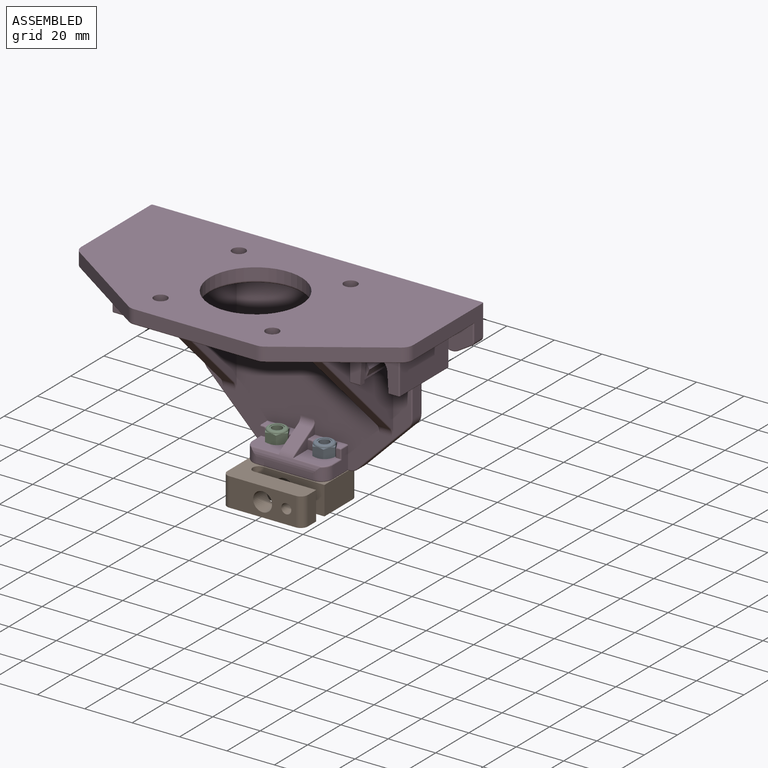
[diagram: assembled view]
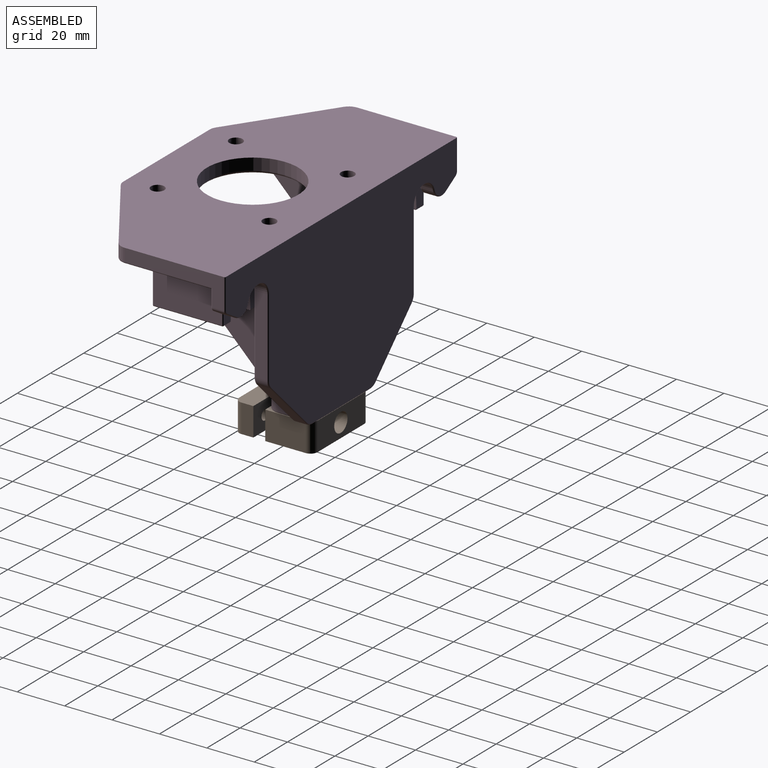
[diagram: assembled view, second angle]
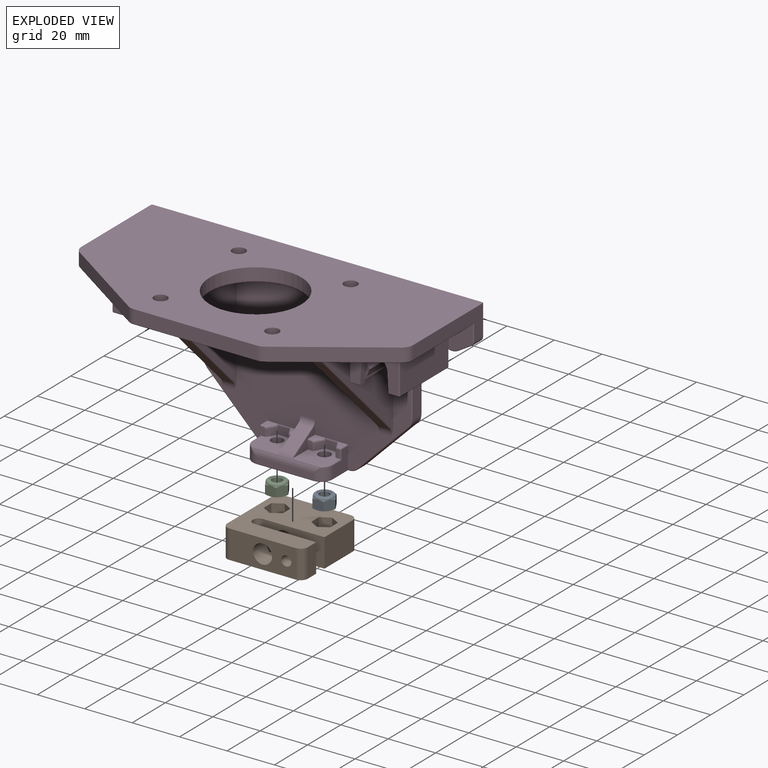
[diagram: exploded view]
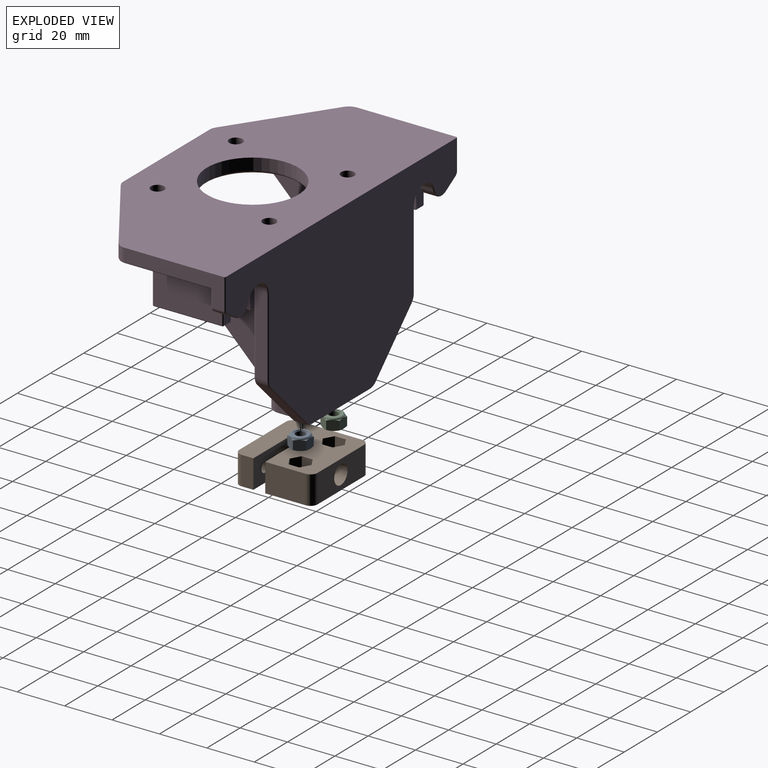
[diagram: exploded view, second angle]
ASSEMBLY  parts=4 mates=8
PART A: 26 faces, bbox 9.6x9.6x5.4 mm
  f0: cylinder r=2.12mm len=4.25mm, axis (0,0,-1), area 8mm2, adj f18,f19
  f1: cylinder r=2.65mm len=5.3mm, axis (0,0,-1), area 3.8mm2, adj f17,f18
  f2: torus R=3.17mm, axis (0,0,-1), area 30.3mm2, adj f4,f11,f12,f13,f14,f15,f17
  f3: cylinder r=2.5mm len=5mm, axis (0,0,-1), area 65.5mm2, adj f16,f19
  f4: cone r=4.75mm half-angle=65deg, axis (0,0,-1), area 1.5mm2, adj f2,f22,f23
  f5: cone r=4mm half-angle=65deg, axis (0,0,1), area 1.5mm2, adj f16,f20,f25
  f6: cone r=4mm half-angle=65deg, axis (0,0,1), area 1.5mm2, adj f16,f22,f23
  f7: cone r=4mm half-angle=65deg, axis (0,0,1), area 1.5mm2, adj f16,f21,f22
  f8: cone r=4mm half-angle=65deg, axis (0,0,1), area 1.5mm2, adj f16,f20,f21
  f9: cone r=4mm half-angle=65deg, axis (0,0,1), area 1.5mm2, adj f16,f23,f24
  f10: cone r=4mm half-angle=65deg, axis (0,0,1), area 1.5mm2, adj f16,f24,f25
  f11: cone r=4.75mm half-angle=65deg, axis (0,0,-1), area 1.5mm2, adj f2,f20,f25
  f12: cone r=4.75mm half-angle=65deg, axis (0,0,-1), area 1.5mm2, adj f2,f20,f21
  f13: cone r=4.75mm half-angle=65deg, axis (0,0,-1), area 1.5mm2, adj f2,f21,f22
  f14: cone r=4.75mm half-angle=65deg, axis (0,0,-1), area 1.5mm2, adj f2,f23,f24
  f15: cone r=4.75mm half-angle=65deg, axis (0,0,-1), area 1.5mm2, adj f2,f24,f25
  f16: plane 8x8mm, normal (0,0,-1), area 30.6mm2, adj f3,f5,f6,f7,f8,f9,f10
  f17: plane 6.34x6.34mm, normal (0,0,1), area 9.5mm2, adj f1,f2
  f18: plane 5.3x5.3mm, normal (0,0,1), area 7.9mm2, adj f0,f1
  f19: plane 5x5mm, normal (0,0,-1), area 5.4mm2, adj f0,f3
  f20: plane 4.53x4.36mm, normal (0.5,-0.87,0), area 18.3mm2, adj f5,f8,f11,f12,f21,f25
  f21: plane 4.98x4.53mm, normal (1,0,0), area 18.3mm2, adj f7,f8,f12,f13,f20,f22
  f22: plane 4.53x4.36mm, normal (0.5,0.87,0), area 18.3mm2, adj f4,f6,f7,f13,f21,f23
  f23: plane 4.53x4.36mm, normal (-0.5,0.87,0), area 18.3mm2, adj f4,f6,f9,f14,f22,f24
  f24: plane 4.98x4.53mm, normal (-1,0,0), area 18.3mm2, adj f9,f10,f14,f15,f23,f25
  f25: plane 4.53x4.36mm, normal (-0.5,-0.87,0), area 18.3mm2, adj f5,f10,f11,f15,f20,f24
PART B: 37 faces, bbox 34x33x12 mm
  f0: cylinder r=2.1mm len=8mm, axis (0,-1,0), area 105.6mm2, adj f13,f31
  f1: cylinder r=2.5mm len=12mm, axis (0,0,1), area 94.2mm2, adj f10,f12,f31,f32
  f2: cylinder r=4.5mm len=9mm, axis (0,0,-1), area 56.5mm2, adj f10,f30
  f3: cylinder r=4.5mm len=9mm, axis (0,0,-1), area 56.5mm2, adj f10,f29
  f4: cylinder r=4mm len=20mm, axis (0,-1,0), area 502.7mm2, adj f14,f32
  f5: cylinder r=2.55mm len=5.1mm, axis (0,0,1), area 80.1mm2, adj f22,f29
  f6: cylinder r=2.55mm len=5.1mm, axis (0,0,1), area 80.1mm2, adj f15,f30
  f7: cylinder r=4mm len=8mm, axis (0,-1,0), area 201.1mm2, adj f13,f31
  f8: plane 12x5mm, normal (1,0,0), area 60mm2, adj f10,f12,f31,f35
  f9: plane 27x12mm, normal (-1,0,0), area 324mm2, adj f10,f12,f33,f36
  f10: plane 34x33mm, normal (0,0,-1), area 847.2mm2, adj f1,f2,f3,f8,f9,f11,f13,f14
  f11: plane 17x12mm, normal (1,0,0), area 204mm2, adj f10,f12,f32,f34
  f12: plane 34x33mm, normal (0,0,1), area 863.6mm2, adj f1,f8,f9,f11,f13,f14,f16,f17
  f13: plane 28x12mm, normal (0,-1,0), area 271.9mm2, adj f0,f7,f10,f12,f35,f36
  f14: plane 28x12mm, normal (0,1,0), area 285.7mm2, adj f4,f10,f12,f33,f34
  f15: plane 9.24x8mm, normal (0,0,1), area 35mm2, adj f6,f16,f17,f18,f19,f20,f21
  f16: plane 5x4mm, normal (-0.5,-0.87,0), area 23.1mm2, adj f12,f15,f17,f21
  f17: plane 5x4.62mm, normal (-1,0,0), area 23.1mm2, adj f12,f15,f16,f18
  f18: plane 5x4mm, normal (-0.5,0.87,0), area 23.1mm2, adj f12,f15,f17,f19
  f19: plane 5x4mm, normal (0.5,0.87,0), area 23.1mm2, adj f12,f15,f18,f20
  f20: plane 5x4.62mm, normal (1,0,0), area 23.1mm2, adj f12,f15,f19,f21
  f21: plane 5x4mm, normal (0.5,-0.87,0), area 23.1mm2, adj f12,f15,f16,f20
  f22: plane 9.24x8mm, normal (0,0,1), area 35mm2, adj f5,f23,f24,f25,f26,f27,f28
  f23: plane 5x4.62mm, normal (1,0,0), area 23.1mm2, adj f12,f22,f24,f28
  f24: plane 5x4mm, normal (0.5,-0.87,0), area 23.1mm2, adj f12,f22,f23,f25
  f25: plane 5x4mm, normal (-0.5,-0.87,0), area 23.1mm2, adj f12,f22,f24,f26
  f26: plane 5x4.62mm, normal (-1,0,0), area 23.1mm2, adj f12,f22,f25,f27
  f27: plane 5x4mm, normal (-0.5,0.87,0), area 23.1mm2, adj f12,f22,f26,f28
  f28: plane 5x4mm, normal (0.5,0.87,0), area 23.1mm2, adj f12,f22,f23,f27
  f29: plane 9x9mm, normal (0,0,-1), area 43.2mm2, adj f3,f5
  f30: plane 9x9mm, normal (0,0,-1), area 43.2mm2, adj f2,f6
  f31: plane 26x12mm, normal (0,1,0), area 247.9mm2, adj f0,f1,f7,f8,f10,f12
  f32: plane 26x12mm, normal (0,-1,0), area 261.7mm2, adj f1,f4,f10,f11,f12
  f33: cylinder r=3mm len=12mm, axis (0,0,-1), area 56.5mm2, adj f9,f10,f12,f14
  f34: cylinder r=3mm len=12mm, axis (0,0,1), area 56.5mm2, adj f10,f11,f12,f14
  f35: cylinder r=3mm len=12mm, axis (0,0,-1), area 56.5mm2, adj f8,f10,f12,f13
  f36: cylinder r=3mm len=12mm, axis (0,0,1), area 56.5mm2, adj f9,f10,f12,f13
PART C: same geometry as A
PART D: 282 faces, bbox 141x74.3x76.5 mm
  f0: plane 3.77x3.06mm, normal (0,0,1), area 7.4mm2, adj f2,f151,f157,f219
  f1: plane 3.77x3.56mm, normal (0,0,1), area 9.3mm2, adj f2,f124,f148,f163
  f2: plane 139.12x69.62mm, normal (0,-1,0), area 4896.8mm2, adj f0,f1,f3,f6,f103,f104,f106,f107
  f3: plane 13.24x10.05mm, normal (-1,0,0), area 39.6mm2, adj f2,f5,f131,f139,f144,f145,f160,f234
  f4: plane 13.5x12.62mm, normal (0,0,1), area 121.7mm2, adj f127,f132,f133,f134,f135,f136,f137,f152
  f5: plane 13.5x12.62mm, normal (0,0,1), area 121.7mm2, adj f3,f128,f139,f140,f141,f142,f143,f158
  f6: plane 139.13x67.4mm, normal (0,0,-1), area 4629.6mm2, adj f2,f21,f22,f23,f24,f85,f91,f96
  f7: cylinder r=7.6mm len=24.8mm, axis (0,1,0), area 386.7mm2, adj f39,f43,f71,f72,f73,f76,f78,f79
  f8: cylinder r=7.6mm len=17.5mm, axis (0,1,0), area 77.4mm2, adj f11,f40,f45,f80
  f9: cylinder r=7.6mm len=24.8mm, axis (0,1,0), area 386.7mm2, adj f50,f54,f59,f60,f61,f64,f66,f67
  f10: cylinder r=7.6mm len=17.5mm, axis (0,1,0), area 77.4mm2, adj f12,f51,f56,f68
  f11: plane 7.18x1.25mm, normal (0,1,0), area 3.6mm2, adj f8,f39,f40
  f12: plane 7.18x1.25mm, normal (0,1,0), area 3.6mm2, adj f10,f50,f51
  f13: plane 7.18x1.25mm, normal (0,-1,0), area 3.6mm2, adj f41,f42,f43
  f14: plane 7.18x1.25mm, normal (0,-1,0), area 3.6mm2, adj f52,f53,f54
  f15: plane 39.03x26.42mm, normal (-0.56,-0.83,0), area 259.2mm2, adj f26,f112,f115,f203
  f16: plane 51.93x5.5mm, normal (0,-1,0), area 285.6mm2, adj f26,f112,f113,f207
  f17: plane 39.03x26.42mm, normal (0.56,-0.83,0), area 259.2mm2, adj f26,f113,f114,f211
  f18: plane 41.85x12.87mm, normal (1,0,0), area 267mm2, adj f26,f114,f122,f164,f215,f216
  f19: plane 139x75.5mm, normal (0,1,0), area 6711.4mm2, adj f26,f164,f165,f166,f167,f168,f169,f170
  f20: cylinder r=19.3mm len=38.6mm, axis (0,0,-1), area 606.3mm2, adj f26,f241
  f21: cylinder r=2.8mm len=6mm, axis (0,0,-1), area 105.6mm2, adj f6,f26
  f22: cylinder r=2.8mm len=6mm, axis (0,0,-1), area 105.6mm2, adj f6,f26
  f23: cylinder r=2.8mm len=6mm, axis (0,0,-1), area 105.6mm2, adj f6,f26
  f24: cylinder r=2.8mm len=6mm, axis (0,0,-1), area 105.6mm2, adj f6,f26
  f25: plane 41.85x12.87mm, normal (-1,0,0), area 267mm2, adj f26,f115,f123,f182,f197,f199
  f26: plane 140x73.77mm, normal (0,0,1), area 7833.6mm2, adj f15,f16,f17,f18,f19,f20,f21,f22
  f27: plane 5.78x5mm, normal (0.52,0,-0.85), area 33.8mm2, adj f116,f122,f166,f212
  f28: cylinder r=6mm len=11.82mm, axis (0,1,0), area 86.9mm2, adj f29,f116,f168,f208
  f29: plane 32.93x5mm, normal (1,0,0), area 164.6mm2, adj f28,f117,f169,f206
  f30: plane 21.57x21.57mm, normal (0.71,0,-0.71), area 152.5mm2, adj f117,f118,f171,f202
  f31: plane 34.86x19mm, normal (0,0,-1), area 586.7mm2, adj f118,f119,f127,f128,f173,f186,f188,f190
  f32: plane 21.57x21.57mm, normal (-0.71,0,-0.71), area 152.5mm2, adj f119,f120,f175,f183
  f33: plane 32.93x5mm, normal (-1,0,0), area 164.6mm2, adj f34,f120,f177,f187
  f34: cylinder r=6mm len=11.82mm, axis (0,1,0), area 86.9mm2, adj f33,f121,f178,f189
  f35: plane 5.78x5mm, normal (-0.52,0,-0.85), area 33.8mm2, adj f121,f123,f180,f193
  f36: plane 28.8x16mm, normal (1,0,0), area 460.8mm2, adj f244,f256,f259,f262
  f37: plane 28.8x16mm, normal (-1,0,0), area 460.8mm2, adj f245,f248,f251,f253
  f38: plane 28.8x4.1mm, normal (0,0,-1), area 78.4mm2, adj f39,f83,f86,f92,f95,f247,f250,f251
  f39: plane 24.8x8mm, normal (1,0,0), area 72.8mm2, adj f7,f11,f38,f40,f45,f80,f86,f92
  f40: plane 17.5x3mm, normal (0.92,0,-0.38), area 56.9mm2, adj f8,f11,f39,f45
  f41: cylinder r=7.6mm len=17.5mm, axis (0,1,0), area 77.4mm2, adj f13,f42,f46,f70
  f42: plane 17.5x3mm, normal (-0.92,0,-0.38), area 56.9mm2, adj f13,f41,f43,f46
  f43: plane 24.8x8mm, normal (-1,0,0), area 72.8mm2, adj f7,f13,f42,f44,f46,f70,f86,f92
  f44: plane 28.8x4.1mm, normal (0,0,-1), area 78.4mm2, adj f43,f82,f86,f92,f93,f257,f259,f260
  f45: plane 7.18x1.25mm, normal (0,-1,0), area 3.6mm2, adj f8,f39,f40
  f46: plane 7.18x1.25mm, normal (0,1,0), area 3.6mm2, adj f41,f42,f43
  f47: plane 28.8x16mm, normal (1,0,0), area 460.8mm2, adj f242,f274,f277,f280
  f48: plane 28.8x16mm, normal (-1,0,0), area 460.8mm2, adj f243,f266,f269,f271
  f49: plane 28.8x4.1mm, normal (0,0,-1), area 78.4mm2, adj f50,f87,f89,f97,f100,f265,f268,f269
  f50: plane 24.8x8mm, normal (1,0,0), area 72.8mm2, adj f9,f12,f49,f51,f56,f68,f87,f97
  f51: plane 17.5x3mm, normal (0.92,0,-0.38), area 56.9mm2, adj f10,f12,f50,f56
  f52: cylinder r=7.6mm len=17.5mm, axis (0,1,0), area 77.4mm2, adj f14,f53,f57,f58
  f53: plane 17.5x3mm, normal (-0.92,0,-0.38), area 56.9mm2, adj f14,f52,f54,f57
  f54: plane 24.8x8mm, normal (-1,0,0), area 72.8mm2, adj f9,f14,f53,f55,f57,f58,f87,f97
  f55: plane 28.8x4.1mm, normal (0,0,-1), area 78.4mm2, adj f54,f87,f88,f97,f98,f275,f277,f278
  f56: plane 7.18x1.25mm, normal (0,-1,0), area 3.6mm2, adj f10,f50,f51
  f57: plane 7.18x1.25mm, normal (0,1,0), area 3.6mm2, adj f52,f53,f54
  f58: plane 18.2x0.5mm, normal (0,0,1), area 9.1mm2, adj f52,f54,f59,f61,f62
  f59: plane 10.5x2.5mm, normal (0,1,0), area 19.2mm2, adj f9,f58,f60,f62,f63
  f60: plane 18.2x5.36mm, normal (1,0,0), area 97.6mm2, adj f9,f59,f61,f63
  f61: plane 10.5x2.5mm, normal (0,-1,0), area 19.2mm2, adj f9,f58,f60,f62,f63
  f62: plane 18.2x10.5mm, normal (-1,0,0), area 191.1mm2, adj f58,f59,f61,f63
  f63: plane 18.2x2.5mm, normal (0,0,-1), area 45.5mm2, adj f59,f60,f61,f62
  f64: plane 10.5x2.5mm, normal (0,1,0), area 19.2mm2, adj f9,f65,f67,f68,f69
  f65: plane 18.2x10.5mm, normal (1,0,0), area 191.1mm2, adj f64,f66,f68,f69
  f66: plane 10.5x2.5mm, normal (0,-1,0), area 19.2mm2, adj f9,f65,f67,f68,f69
  f67: plane 18.2x5.36mm, normal (-1,0,0), area 97.6mm2, adj f9,f64,f66,f69
  f68: plane 18.2x0.5mm, normal (0,0,1), area 9.1mm2, adj f10,f50,f64,f65,f66
  f69: plane 18.2x2.5mm, normal (0,0,-1), area 45.5mm2, adj f64,f65,f66,f67
  f70: plane 18.2x0.5mm, normal (0,0,1), area 9.1mm2, adj f41,f43,f71,f73,f74
  f71: plane 10.5x2.5mm, normal (0,1,0), area 19.2mm2, adj f7,f70,f72,f74,f75
  f72: plane 18.2x5.36mm, normal (1,0,0), area 97.6mm2, adj f7,f71,f73,f75
  f73: plane 10.5x2.5mm, normal (0,-1,0), area 19.2mm2, adj f7,f70,f72,f74,f75
  f74: plane 18.2x10.5mm, normal (-1,0,0), area 191.1mm2, adj f70,f71,f73,f75
  f75: plane 18.2x2.5mm, normal (0,0,-1), area 45.5mm2, adj f71,f72,f73,f74
  f76: plane 10.5x2.5mm, normal (0,1,0), area 19.2mm2, adj f7,f77,f79,f80,f81
  f77: plane 18.2x10.5mm, normal (1,0,0), area 191.1mm2, adj f76,f78,f80,f81
  f78: plane 10.5x2.5mm, normal (0,-1,0), area 19.2mm2, adj f7,f77,f79,f80,f81
  f79: plane 18.2x5.36mm, normal (-1,0,0), area 97.6mm2, adj f7,f76,f78,f81
  f80: plane 18.2x0.5mm, normal (0,0,1), area 9.1mm2, adj f8,f39,f76,f77,f78
  f81: plane 18.2x2.5mm, normal (0,0,-1), area 45.5mm2, adj f76,f77,f78,f79
  f82: plane 8.01x2.51mm, normal (-1,0,-0.06), area 20mm2, adj f44,f84,f85,f86,f260
  f83: plane 8.01x2.51mm, normal (1,0,-0.06), area 20mm2, adj f38,f84,f85,f86,f250
  f84: cylinder r=5.5mm len=11mm, axis (0,1,0), area 43.2mm2, adj f82,f83,f85,f86
  f85: plane 22.2x18mm, normal (0,-1,0), area 231.3mm2, adj f6,f82,f83,f84,f250,f253,f254,f260
  f86: plane 15.6x15.2mm, normal (0,1,0), area 72.8mm2, adj f7,f38,f39,f43,f44,f82,f83,f84
  f87: plane 15.6x15.2mm, normal (0,1,0), area 72.8mm2, adj f9,f49,f50,f54,f55,f88,f89,f90
  f88: plane 8.01x2.51mm, normal (-1,0,-0.06), area 20mm2, adj f55,f87,f90,f91,f278
  f89: plane 8.01x2.51mm, normal (1,0,-0.06), area 20mm2, adj f49,f87,f90,f91,f268
  f90: cylinder r=5.5mm len=11mm, axis (0,1,0), area 43.2mm2, adj f87,f88,f89,f91
  f91: plane 22.2x18mm, normal (0,-1,0), area 231.3mm2, adj f6,f88,f89,f90,f268,f271,f272,f278
  f92: plane 15.6x15.2mm, normal (0,-1,0), area 72.8mm2, adj f7,f38,f39,f43,f44,f93,f94,f95
  f93: plane 8.01x2.51mm, normal (-1,0,-0.06), area 20mm2, adj f44,f92,f94,f96,f257
  f94: cylinder r=5.5mm len=11mm, axis (0,-1,0), area 43.2mm2, adj f92,f93,f95,f96
  f95: plane 8.01x2.51mm, normal (1,0,-0.06), area 20mm2, adj f38,f92,f94,f96,f247
  f96: plane 22.2x18mm, normal (0,1,0), area 231.3mm2, adj f6,f93,f94,f95,f246,f247,f248,f255
  f97: plane 15.6x15.2mm, normal (0,-1,0), area 72.8mm2, adj f9,f49,f50,f54,f55,f98,f99,f100
  f98: plane 8.01x2.51mm, normal (-1,0,-0.06), area 20mm2, adj f55,f97,f99,f101,f275
  f99: cylinder r=5.5mm len=11mm, axis (0,-1,0), area 43.2mm2, adj f97,f98,f100,f101
  f100: plane 8.01x2.51mm, normal (1,0,-0.06), area 20mm2, adj f49,f97,f99,f101,f265
  f101: plane 22.2x18mm, normal (0,1,0), area 231.3mm2, adj f6,f98,f99,f100,f264,f265,f266,f273
  f102: plane 47.07x47.07mm, normal (0,-0.71,-0.71), area 332.8mm2, adj f110,f111,f223,f226
  f103: plane 49.78x49.78mm, normal (1,0,0), area 1215.2mm2, adj f2,f6,f222,f223,f224
  f104: plane 49.78x49.78mm, normal (-1,0,0), area 1215.2mm2, adj f2,f6,f225,f226,f227
  f105: plane 47.07x47.07mm, normal (0,-0.71,-0.71), area 332.8mm2, adj f108,f109,f229,f232
  f106: plane 49.78x49.78mm, normal (-1,0,0), area 1215.2mm2, adj f2,f6,f228,f229,f230
  f107: plane 49.78x49.78mm, normal (1,0,0), area 1215.2mm2, adj f2,f6,f231,f232,f233
  f108: cylinder r=5mm len=5mm, axis (-1,0,0), area 19.6mm2, adj f6,f105,f228,f231
  f109: cylinder r=5mm len=5mm, axis (-1,0,0), area 19.6mm2, adj f2,f105,f230,f233
  f110: cylinder r=5mm len=5mm, axis (-1,0,0), area 19.6mm2, adj f6,f102,f222,f225
  f111: cylinder r=5mm len=5mm, axis (-1,0,0), area 19.6mm2, adj f2,f102,f224,f227
  f112: cylinder r=5mm len=5.5mm, axis (0,0,-1), area 16.4mm2, adj f15,f16,f26,f205
  f113: cylinder r=5mm len=5.5mm, axis (0,0,-1), area 16.4mm2, adj f16,f17,f26,f209
  f114: cylinder r=5mm len=5.5mm, axis (0,0,-1), area 26.8mm2, adj f17,f18,f26,f213
  f115: cylinder r=5mm len=5.5mm, axis (0,0,-1), area 26.8mm2, adj f15,f25,f26,f201
  f116: cylinder r=5mm len=7.44mm, axis (0,1,0), area 46.8mm2, adj f27,f28,f167,f210
  f117: cylinder r=5mm len=5mm, axis (0,1,0), area 19.6mm2, adj f29,f30,f170,f204
  f118: cylinder r=5mm len=5mm, axis (0,-1,0), area 19.6mm2, adj f30,f31,f172,f200
  f119: cylinder r=5mm len=5mm, axis (0,1,0), area 19.6mm2, adj f31,f32,f174,f184
  f120: cylinder r=5mm len=5mm, axis (0,1,0), area 19.6mm2, adj f32,f33,f176,f185
  f121: cylinder r=5mm len=7.44mm, axis (0,1,0), area 46.8mm2, adj f34,f35,f179,f191
  f122: cylinder r=2mm len=5mm, axis (0,1,0), area 10.3mm2, adj f18,f27,f165,f214
  f123: cylinder r=2mm len=5mm, axis (0,-1,0), area 10.3mm2, adj f25,f35,f181,f195
  f124: plane 9.5x9mm, normal (-1,0,0), area 64.2mm2, adj f1,f2,f130,f140,f163,f188,f240
  f125: plane 9x9mm, normal (1,0,0), area 60.1mm2, adj f2,f129,f196,f217,f219,f237
  f126: plane 24x2.61mm, normal (0,-1,0), area 62.7mm2, adj f129,f130,f192,f234
  f127: cylinder r=2.55mm len=6mm, axis (0,0,-1), area 96.1mm2, adj f4,f31
  f128: cylinder r=2.55mm len=6mm, axis (0,0,-1), area 96.1mm2, adj f5,f31
  f129: cylinder r=5mm len=5mm, axis (0,0,-1), area 36.3mm2, adj f125,f126,f194,f234,f236
  f130: cylinder r=5mm len=5mm, axis (0,0,1), area 36.3mm2, adj f124,f126,f190,f234,f239
  f131: plane 10x5.77mm, normal (0,-0.5,0.87), area 63.5mm2, adj f3,f145,f220,f234
  f132: plane 13.24x8.25mm, normal (1,0,0), area 32mm2, adj f2,f4,f133,f138,f154,f220,f221,f234
  f133: plane 3.5x1.96mm, normal (0,-1,0), area 6.8mm2, adj f4,f132,f152,f153,f154
  f134: plane 3.82x3mm, normal (0.87,-0.5,0), area 13.2mm2, adj f4,f135,f149,f152
  f135: plane 5.02x3.42mm, normal (0,-1,0), area 16.3mm2, adj f4,f134,f136,f149,f150,f151
  f136: plane 3.82x3mm, normal (-0.87,-0.5,0), area 13.2mm2, adj f4,f135,f151,f155
  f137: plane 3.5x1.46mm, normal (0,-1,0), area 5.1mm2, adj f4,f155,f156,f157,f217
  f138: plane 3.77x3.56mm, normal (0,0,1), area 9.3mm2, adj f2,f132,f149,f154
  f139: plane 3.5x1.96mm, normal (0,-1,0), area 6.8mm2, adj f3,f5,f158,f159,f160
  f140: plane 4x1.96mm, normal (0,-1,0), area 6.9mm2, adj f5,f124,f161,f162,f163,f240
  f141: plane 3.82x3mm, normal (0.87,-0.5,0), area 13.2mm2, adj f5,f142,f148,f161
  f142: plane 5.02x3.42mm, normal (0,-1,0), area 16.3mm2, adj f5,f141,f143,f146,f147,f148
  f143: plane 3.82x3mm, normal (-0.87,-0.5,0), area 13.2mm2, adj f5,f142,f146,f158
  f144: plane 3.77x3.56mm, normal (0,0,1), area 9.3mm2, adj f2,f3,f146,f160
  f145: cylinder r=3mm len=5.5mm, axis (-1,0,0), area 17.3mm2, adj f2,f3,f131,f221
  f146: cylinder r=1mm len=4.57mm, axis (-0.5,0.87,0), area 6.9mm2, adj f142,f143,f144,f147,f159
  f147: cylinder r=1mm len=6.88mm, axis (-1,0,0), area 3.6mm2, adj f2,f142,f146,f148
  f148: cylinder r=1mm len=4.57mm, axis (-0.5,-0.87,0), area 6.9mm2, adj f1,f141,f142,f147,f162
  f149: cylinder r=1mm len=4.57mm, axis (-0.5,-0.87,0), area 6.9mm2, adj f134,f135,f138,f150,f153
  f150: cylinder r=1mm len=6.88mm, axis (-1,0,0), area 3.6mm2, adj f2,f135,f149,f151
  f151: cylinder r=1mm len=4.57mm, axis (-0.5,0.87,0), area 6.9mm2, adj f0,f135,f136,f150,f156
  f152: cylinder r=0.5mm len=3mm, axis (0,0,-1), area 1.6mm2, adj f4,f133,f134,f153
  f153: bspline ~1.01x1mm, area 0.8mm2, adj f133,f149,f152,f154
  f154: cylinder r=0.5mm len=1.38mm, axis (-1,0,0), area 1.1mm2, adj f132,f133,f138,f153
  f155: cylinder r=0.5mm len=3mm, axis (0,0,1), area 1.6mm2, adj f4,f136,f137,f156
  f156: bspline ~1.05x1.01mm, area 0.8mm2, adj f137,f151,f155,f157
  f157: cylinder r=0.5mm len=0.88mm, axis (-1,0,0), area 0.7mm2, adj f0,f137,f156,f218
  f158: cylinder r=0.5mm len=3mm, axis (0,0,-1), area 1.6mm2, adj f5,f139,f143,f159
  f159: bspline ~1.05x1.01mm, area 0.8mm2, adj f139,f146,f158,f160
  f160: cylinder r=0.5mm len=1.38mm, axis (-1,0,0), area 1.1mm2, adj f3,f139,f144,f159
  f161: cylinder r=0.5mm len=3mm, axis (0,0,1), area 1.6mm2, adj f5,f140,f141,f162
  f162: bspline ~1.01x1mm, area 0.8mm2, adj f140,f148,f161,f163
  f163: cylinder r=0.5mm len=1.38mm, axis (-1,0,0), area 1.1mm2, adj f1,f124,f140,f162
  f164: cylinder r=0.5mm len=12.87mm, axis (0,0,-1), area 10.1mm2, adj f18,f19,f26,f165
  f165: torus R=1.5mm, axis (0,-1,0), area 1.5mm2, adj f19,f122,f164,f166
  f166: cylinder r=0.5mm len=6.04mm, axis (0.85,0,0.52), area 5.3mm2, adj f19,f27,f165,f167
  f167: torus R=4.5mm, axis (0,-1,0), area 7.1mm2, adj f19,f116,f166,f168
  f168: torus R=6.5mm, axis (0,-1,0), area 14.1mm2, adj f19,f28,f167,f169
  f169: cylinder r=0.5mm len=32.93mm, axis (0,0,1), area 25.9mm2, adj f19,f29,f168,f170
  f170: torus R=4.5mm, axis (0,-1,0), area 3mm2, adj f19,f117,f169,f171
  f171: cylinder r=0.5mm len=21.92mm, axis (0.71,0,0.71), area 24mm2, adj f19,f30,f170,f172
  f172: torus R=4.5mm, axis (0,-1,0), area 3mm2, adj f19,f118,f171,f173
  f173: cylinder r=0.5mm len=34.86mm, axis (1,0,0), area 27.4mm2, adj f19,f31,f172,f174
  f174: torus R=4.5mm, axis (0,-1,0), area 3mm2, adj f19,f119,f173,f175
  f175: cylinder r=0.5mm len=21.92mm, axis (0.71,0,-0.71), area 24mm2, adj f19,f32,f174,f176
  f176: torus R=4.5mm, axis (0,-1,0), area 3mm2, adj f19,f120,f175,f177
  f177: cylinder r=0.5mm len=32.93mm, axis (0,0,-1), area 25.9mm2, adj f19,f33,f176,f178
  f178: torus R=6.5mm, axis (0,-1,0), area 14.1mm2, adj f19,f34,f177,f179
  f179: torus R=4.5mm, axis (0,-1,0), area 7.1mm2, adj f19,f121,f178,f180
  f180: cylinder r=0.5mm len=6.04mm, axis (0.85,0,-0.52), area 5.3mm2, adj f19,f35,f179,f181
  f181: torus R=1.5mm, axis (0,-1,0), area 1.5mm2, adj f19,f123,f180,f182
  f182: cylinder r=0.5mm len=12.87mm, axis (0,0,-1), area 10.1mm2, adj f19,f25,f26,f181
  f183: cylinder r=0.5mm len=21.92mm, axis (0.71,0,-0.71), area 24mm2, adj f2,f32,f184,f185
  f184: torus R=4.5mm, axis (0,1,0), area 3mm2, adj f2,f119,f183,f186
  f185: torus R=4.5mm, axis (0,1,0), area 3mm2, adj f2,f120,f183,f187
  f186: cylinder r=0.5mm len=0.93mm, axis (1,0,0), area 0.5mm2, adj f2,f31,f184,f188
  f187: cylinder r=0.5mm len=32.93mm, axis (0,0,-1), area 25.9mm2, adj f2,f33,f185,f189
  f188: cylinder r=0.5mm len=9.5mm, axis (0,-1,0), area 7.3mm2, adj f31,f124,f186,f190
  f189: torus R=6.5mm, axis (0,1,0), area 14.1mm2, adj f2,f34,f187,f191
  f190: torus R=4.5mm, axis (0,0,1), area 5.9mm2, adj f31,f130,f188,f192
  f191: torus R=4.5mm, axis (0,1,0), area 7.1mm2, adj f2,f121,f189,f193
  f192: cylinder r=0.5mm len=24mm, axis (-1,0,0), area 18.8mm2, adj f31,f126,f190,f194
  f193: cylinder r=0.5mm len=6.04mm, axis (0.85,0,-0.52), area 5.3mm2, adj f2,f35,f191,f195
  f194: torus R=4.5mm, axis (0,0,1), area 5.9mm2, adj f31,f129,f192,f196
  f195: torus R=1.5mm, axis (0,1,0), area 1.5mm2, adj f2,f123,f193,f197
  f196: cylinder r=0.5mm len=9.5mm, axis (0,1,0), area 7.3mm2, adj f31,f125,f194,f198
  f197: cylinder r=0.5mm len=7.37mm, axis (0,0,-1), area 5.6mm2, adj f2,f25,f195,f199
  f198: cylinder r=0.5mm len=0.93mm, axis (1,0,0), area 0.5mm2, adj f2,f31,f196,f200
  f199: cylinder r=0.5mm len=36.85mm, axis (0,-1,0), area 28.7mm2, adj f6,f25,f197,f201
  f200: torus R=4.5mm, axis (0,1,0), area 3mm2, adj f2,f118,f198,f202
  f201: torus R=4.5mm, axis (0,0,1), area 3.7mm2, adj f6,f115,f199,f203
  f202: cylinder r=0.5mm len=21.92mm, axis (0.71,0,0.71), area 24mm2, adj f2,f30,f200,f204
  f203: cylinder r=0.5mm len=39.31mm, axis (0.83,-0.56,0), area 37mm2, adj f6,f15,f201,f205
  f204: torus R=4.5mm, axis (0,1,0), area 3mm2, adj f2,f117,f202,f206
  f205: torus R=4.5mm, axis (0,0,1), area 2.3mm2, adj f6,f112,f203,f207
  f206: cylinder r=0.5mm len=32.93mm, axis (0,0,1), area 25.9mm2, adj f2,f29,f204,f208
  f207: cylinder r=0.5mm len=51.93mm, axis (1,0,0), area 40.8mm2, adj f6,f16,f205,f209
  f208: torus R=6.5mm, axis (0,1,0), area 14.1mm2, adj f2,f28,f206,f210
  f209: torus R=4.5mm, axis (0,0,1), area 2.3mm2, adj f6,f113,f207,f211
  f210: torus R=4.5mm, axis (0,1,0), area 7.1mm2, adj f2,f116,f208,f212
  f211: cylinder r=0.5mm len=39.31mm, axis (0.83,0.56,0), area 37mm2, adj f6,f17,f209,f213
  f212: cylinder r=0.5mm len=6.04mm, axis (0.85,0,0.52), area 5.3mm2, adj f2,f27,f210,f214
  f213: torus R=4.5mm, axis (0,0,1), area 3.7mm2, adj f6,f114,f211,f215
  f214: torus R=1.5mm, axis (0,1,0), area 1.5mm2, adj f2,f122,f212,f216
  f215: cylinder r=0.5mm len=36.85mm, axis (0,1,0), area 28.7mm2, adj f6,f18,f213,f216
  f216: cylinder r=0.5mm len=7.37mm, axis (0,0,1), area 5.6mm2, adj f2,f18,f214,f215
  f217: cylinder r=0.5mm len=4mm, axis (0,0,-1), area 2.9mm2, adj f125,f137,f218,f237
  f218: sphere r=0.5mm, area 0.4mm2, adj f157,f217,f219
  f219: cylinder r=0.5mm len=3.77mm, axis (0,-1,0), area 3mm2, adj f0,f2,f125,f218
  f220: cylinder r=0.5mm len=12.14mm, axis (0,0.87,0.5), area 9.9mm2, adj f131,f132,f221,f234
  f221: torus R=3.5mm, axis (1,0,0), area 1.9mm2, adj f2,f132,f145,f220
  f222: torus R=5.5mm, axis (1,0,0), area 2.3mm2, adj f6,f103,f110,f223
  f223: cylinder r=0.5mm len=47.42mm, axis (0,-0.71,0.71), area 52.3mm2, adj f102,f103,f222,f224
  f224: torus R=5.5mm, axis (1,0,0), area 2.3mm2, adj f2,f103,f111,f223
  f225: torus R=5.5mm, axis (1,0,0), area 2.3mm2, adj f6,f104,f110,f226
  f226: cylinder r=0.5mm len=47.42mm, axis (0,0.71,-0.71), area 52.3mm2, adj f102,f104,f225,f227
  f227: torus R=5.5mm, axis (1,0,0), area 2.3mm2, adj f2,f104,f111,f226
  f228: torus R=5.5mm, axis (-1,0,0), area 2.3mm2, adj f6,f106,f108,f229
  f229: cylinder r=0.5mm len=47.42mm, axis (0,0.71,-0.71), area 52.3mm2, adj f105,f106,f228,f230
  f230: torus R=5.5mm, axis (-1,0,0), area 2.3mm2, adj f2,f106,f109,f229
  f231: torus R=5.5mm, axis (-1,0,0), area 2.3mm2, adj f6,f107,f108,f232
  f232: cylinder r=0.5mm len=47.42mm, axis (0,-0.71,0.71), area 52.3mm2, adj f105,f107,f231,f233
  f233: torus R=5.5mm, axis (-1,0,0), area 2.3mm2, adj f2,f107,f109,f232
  f234: cylinder r=5mm len=29.01mm, axis (-1,0,0), area 88.6mm2, adj f3,f126,f129,f130,f131,f132,f220,f235
  f235: cylinder r=0.5mm len=11.51mm, axis (-1,0,0), area 5.8mm2, adj f4,f132,f234,f236
  f236: torus R=4.5mm, axis (0,0,1), area 3.9mm2, adj f4,f129,f234,f235,f237
  f237: cylinder r=0.5mm len=5.23mm, axis (0,-1,0), area 3.9mm2, adj f4,f125,f217,f236
  f238: cylinder r=0.5mm len=11.51mm, axis (-1,0,0), area 5.8mm2, adj f3,f5,f234,f239
  f239: torus R=4.5mm, axis (0,0,1), area 3.9mm2, adj f5,f130,f234,f238,f240
  f240: cylinder r=0.5mm len=4.73mm, axis (0,1,0), area 3.7mm2, adj f5,f124,f140,f239
  f241: torus R=20.3mm, axis (0,0,1), area 194.1mm2, adj f6,f20
  f242: cylinder r=2mm len=28.8mm, axis (0,1,0), area 90.5mm2, adj f6,f47,f273,f281
  f243: cylinder r=2mm len=28.8mm, axis (0,-1,0), area 90.5mm2, adj f6,f48,f264,f272
  f244: cylinder r=2mm len=28.8mm, axis (0,1,0), area 90.5mm2, adj f6,f36,f255,f263
  f245: cylinder r=2mm len=28.8mm, axis (0,-1,0), area 90.5mm2, adj f6,f37,f246,f254
  f246: torus R=2.5mm, axis (0,1,0), area 2.1mm2, adj f6,f96,f245,f248
  f247: cylinder r=0.5mm len=4.13mm, axis (1,0,0), area 3.2mm2, adj f38,f95,f96,f249
  f248: cylinder r=0.5mm len=16mm, axis (0,0,1), area 12.6mm2, adj f37,f96,f246,f249
  f249: sphere r=0.5mm, area 0.4mm2, adj f247,f248,f251
  f250: cylinder r=0.5mm len=4.13mm, axis (1,0,0), area 3.2mm2, adj f38,f83,f85,f252
  f251: cylinder r=0.5mm len=28.8mm, axis (0,1,0), area 22.6mm2, adj f37,f38,f249,f252
  f252: sphere r=0.5mm, area 0.4mm2, adj f250,f251,f253
  f253: cylinder r=0.5mm len=16mm, axis (0,0,1), area 12.6mm2, adj f37,f85,f252,f254
  f254: torus R=2.5mm, axis (0,-1,0), area 2.1mm2, adj f6,f85,f245,f253
  f255: torus R=2.5mm, axis (0,1,0), area 2.1mm2, adj f6,f96,f244,f256
  f256: cylinder r=0.5mm len=16mm, axis (0,0,-1), area 12.6mm2, adj f36,f96,f255,f258
  f257: cylinder r=0.5mm len=4.13mm, axis (-1,0,0), area 3.2mm2, adj f44,f93,f96,f258
  f258: sphere r=0.5mm, area 0.4mm2, adj f256,f257,f259
  f259: cylinder r=0.5mm len=28.8mm, axis (0,-1,0), area 22.6mm2, adj f36,f44,f258,f261
  f260: cylinder r=0.5mm len=4.13mm, axis (-1,0,0), area 3.2mm2, adj f44,f82,f85,f261
  f261: sphere r=0.5mm, area 0.4mm2, adj f259,f260,f262
  f262: cylinder r=0.5mm len=16mm, axis (0,0,-1), area 12.6mm2, adj f36,f85,f261,f263
  f263: torus R=2.5mm, axis (0,-1,0), area 2.1mm2, adj f6,f85,f244,f262
  f264: torus R=2.5mm, axis (0,1,0), area 2.1mm2, adj f6,f101,f243,f266
  f265: cylinder r=0.5mm len=4.13mm, axis (-1,0,0), area 3.2mm2, adj f49,f100,f101,f267
  f266: cylinder r=0.5mm len=16mm, axis (0,0,1), area 12.6mm2, adj f48,f101,f264,f267
  f267: sphere r=0.5mm, area 0.4mm2, adj f265,f266,f269
  f268: cylinder r=0.5mm len=4.13mm, axis (-1,0,0), area 3.2mm2, adj f49,f89,f91,f270
  f269: cylinder r=0.5mm len=28.8mm, axis (0,1,0), area 22.6mm2, adj f48,f49,f267,f270
  f270: sphere r=0.5mm, area 0.4mm2, adj f268,f269,f271
  f271: cylinder r=0.5mm len=16mm, axis (0,0,1), area 12.6mm2, adj f48,f91,f270,f272
  f272: torus R=2.5mm, axis (0,-1,0), area 2.1mm2, adj f6,f91,f243,f271
  f273: torus R=2.5mm, axis (0,1,0), area 2.1mm2, adj f6,f101,f242,f274
  f274: cylinder r=0.5mm len=16mm, axis (0,0,-1), area 12.6mm2, adj f47,f101,f273,f276
  f275: cylinder r=0.5mm len=4.13mm, axis (-1,0,0), area 3.2mm2, adj f55,f98,f101,f276
  f276: sphere r=0.5mm, area 0.4mm2, adj f274,f275,f277
  f277: cylinder r=0.5mm len=28.8mm, axis (0,-1,0), area 22.6mm2, adj f47,f55,f276,f279
  f278: cylinder r=0.5mm len=4.13mm, axis (-1,0,0), area 3.2mm2, adj f55,f88,f91,f279
  f279: sphere r=0.5mm, area 0.4mm2, adj f277,f278,f280
  f280: cylinder r=0.5mm len=16mm, axis (0,0,-1), area 12.6mm2, adj f47,f91,f279,f281
  f281: torus R=2.5mm, axis (0,-1,0), area 2.1mm2, adj f6,f91,f242,f280
PLACE A rot(axis=(0,0,1),30deg) t=(-34.86,117.09,-246.28)mm
PLACE B t=(-44.86,127.09,-258.28)mm
PLACE C rot(axis=(0,0,1),30deg) t=(-54.86,117.09,-246.28)mm
PLACE D t=(-44.86,89.89,-182.28)mm
MATE planar A.f16 <-> D.f4  axis (0,0,-1) through (-38.33,119.09,-246.28)mm
MATE parallel D.f136 <-> A.f21  axis (-0.87,-0.5,0) through (-30.26,117.27,-243.28)mm
MATE cylindrical D.f127 <-> A.f0  axis (0,0,1) through (-34.86,117.09,-246.28)mm
MATE cylindrical B.f3 <-> D.f127  axis (0,0,-1) through (-34.86,117.09,-262.28)mm
MATE cylindrical C.f0 <-> D.f128  axis (0,0,-1) through (-54.86,117.09,-244.2)mm
MATE parallel C.f21 <-> D.f143  axis (0.87,0.5,0) through (-51.4,119.09,-244.2)mm
MATE planar B.f12 <-> D.f31  axis (0,0,1) through (-45.35,110.72,-252.28)mm
MATE planar B.f11 <-> D.f125  axis (1,0,0) through (-27.86,115.59,-258.28)mm
